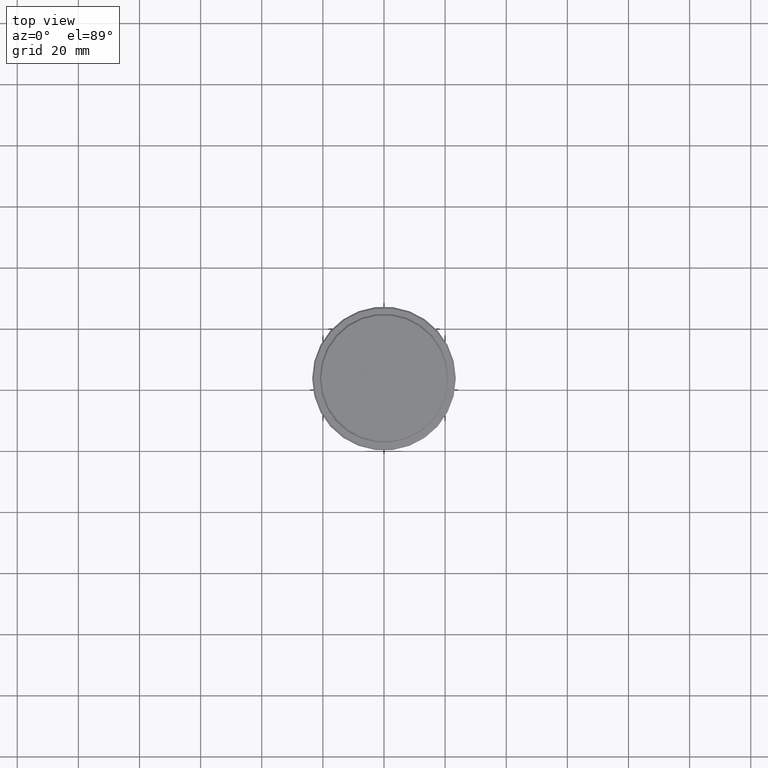
[diagram: clean part render]
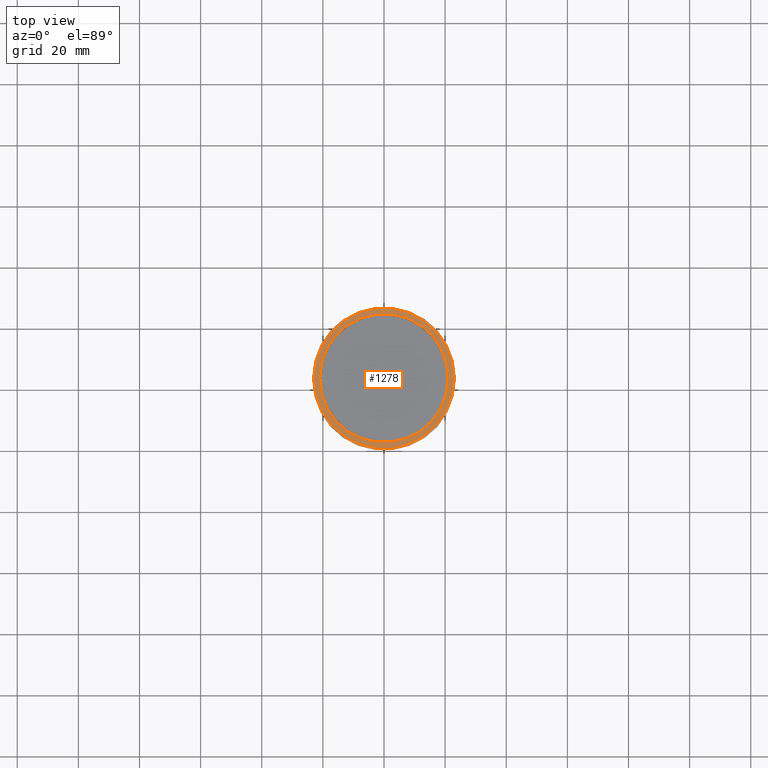
[diagram: same view with one face highlighted and labeled with its STEP entity id]
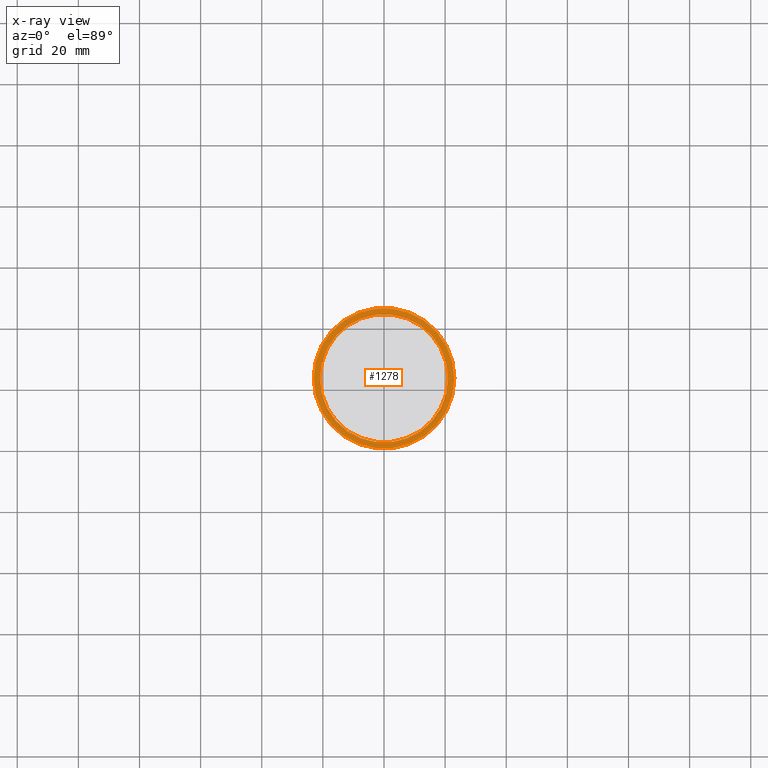
[diagram: x-ray of the same camera — body ghosted, the highlighted face saturated]
A machine part, top view. The second image highlights one B-rep face of the part: STEP entity #1278.
The next image is the same camera in x-ray: the body ghosted, the highlighted face saturated — about 0% of this face is hidden behind the body in this view.
In plain terms, the highlighted planar face has unit normal (0, -0, 1).
Its self-contained STEP definition (entity closure, byte-faithful):
#71 = DIRECTION ( 'NONE',  ( 0.000000000000000000, -0.000000000000000000, 1.000000000000000000 ) ) ;
#191 = VERTEX_POINT ( 'NONE', #1054 ) ;
#192 = EDGE_CURVE ( 'NONE', #794, #191, #231, .T. ) ;
#197 = DIRECTION ( 'NONE',  ( 1.000000000000000000, 0.000000000000000000, 0.000000000000000000 ) ) ;
#202 = DIRECTION ( 'NONE',  ( 1.000000000000000000, 0.000000000000000000, 0.000000000000000000 ) ) ;
#218 = CARTESIAN_POINT ( 'NONE',  ( 0.000000000000000000, 0.000000000000000000, -9.000000000000001776 ) ) ;
#231 = CIRCLE ( 'NONE', #1347, 23.00000000000002487 ) ;
#252 = AXIS2_PLACEMENT_3D ( 'NONE', #844, #71, #1363 ) ;
#274 = CIRCLE ( 'NONE', #466, 23.00000000000002487 ) ;
#282 = VERTEX_POINT ( 'NONE', #578 ) ;
#327 = EDGE_CURVE ( 'NONE', #191, #794, #274, .T. ) ;
#368 = AXIS2_PLACEMENT_3D ( 'NONE', #218, #1104, #814 ) ;
#415 = ORIENTED_EDGE ( 'NONE', *, *, #192, .T. ) ;
#466 = AXIS2_PLACEMENT_3D ( 'NONE', #1134, #594, #807 ) ;
#484 = EDGE_CURVE ( 'NONE', #282, #1206, #999, .T. ) ;
#578 = CARTESIAN_POINT ( 'NONE',  ( -20.99999999999999289, 2.571758278209440872E-15, -9.000000000000001776 ) ) ;
#594 = DIRECTION ( 'NONE',  ( -0.000000000000000000, -0.000000000000000000, 1.000000000000000000 ) ) ;
#617 = FACE_BOUND ( 'NONE', #731, .T. ) ;
#671 = CARTESIAN_POINT ( 'NONE',  ( 0.000000000000000000, 0.000000000000000000, -9.000000000000001776 ) ) ;
#731 = EDGE_LOOP ( 'NONE', ( #857, #1256 ) ) ;
#794 = VERTEX_POINT ( 'NONE', #874 ) ;
#807 = DIRECTION ( 'NONE',  ( 1.000000000000000000, 0.000000000000000000, 0.000000000000000000 ) ) ;
#814 = DIRECTION ( 'NONE',  ( 1.000000000000000000, 0.000000000000000000, 0.000000000000000000 ) ) ;
#844 = CARTESIAN_POINT ( 'NONE',  ( 0.000000000000000000, 20.49999999999999645, -9.000000000000001776 ) ) ;
#857 = ORIENTED_EDGE ( 'NONE', *, *, #1361, .T. ) ;
#874 = CARTESIAN_POINT ( 'NONE',  ( 23.00000000000002487, 2.847303808017597717E-15, -9.000000000000001776 ) ) ;
#920 = ORIENTED_EDGE ( 'NONE', *, *, #327, .T. ) ;
#999 = CIRCLE ( 'NONE', #368, 20.99999999999999289 ) ;
#1005 = CIRCLE ( 'NONE', #1264, 20.99999999999999289 ) ;
#1054 = CARTESIAN_POINT ( 'NONE',  ( -23.00000000000002487, 0.000000000000000000, -9.000000000000001776 ) ) ;
#1062 = FACE_OUTER_BOUND ( 'NONE', #1272, .T. ) ;
#1104 = DIRECTION ( 'NONE',  ( 0.000000000000000000, 0.000000000000000000, -1.000000000000000000 ) ) ;
#1134 = CARTESIAN_POINT ( 'NONE',  ( 0.000000000000000000, 0.000000000000000000, -9.000000000000001776 ) ) ;
#1167 = PLANE ( 'NONE',  #252 ) ;
#1186 = DIRECTION ( 'NONE',  ( 0.000000000000000000, 0.000000000000000000, -1.000000000000000000 ) ) ;
#1188 = CARTESIAN_POINT ( 'NONE',  ( 0.000000000000000000, 0.000000000000000000, -9.000000000000001776 ) ) ;
#1206 = VERTEX_POINT ( 'NONE', #1333 ) ;
#1256 = ORIENTED_EDGE ( 'NONE', *, *, #484, .T. ) ;
#1264 = AXIS2_PLACEMENT_3D ( 'NONE', #671, #1186, #202 ) ;
#1272 = EDGE_LOOP ( 'NONE', ( #920, #415 ) ) ;
#1278 = ADVANCED_FACE ( 'NONE', ( #1062, #617 ), #1167, .T. ) ;
#1302 = DIRECTION ( 'NONE',  ( -0.000000000000000000, -0.000000000000000000, 1.000000000000000000 ) ) ;
#1333 = CARTESIAN_POINT ( 'NONE',  ( 20.99999999999999289, 0.000000000000000000, -9.000000000000001776 ) ) ;
#1347 = AXIS2_PLACEMENT_3D ( 'NONE', #1188, #1302, #197 ) ;
#1361 = EDGE_CURVE ( 'NONE', #1206, #282, #1005, .T. ) ;
#1363 = DIRECTION ( 'NONE',  ( 1.000000000000000000, 0.000000000000000000, 0.000000000000000000 ) ) ;